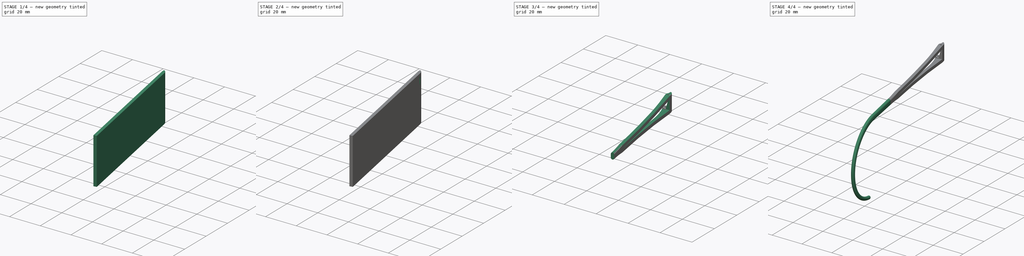
[diagram: build sequence overview — one tinted view per stage of 4, left to right]
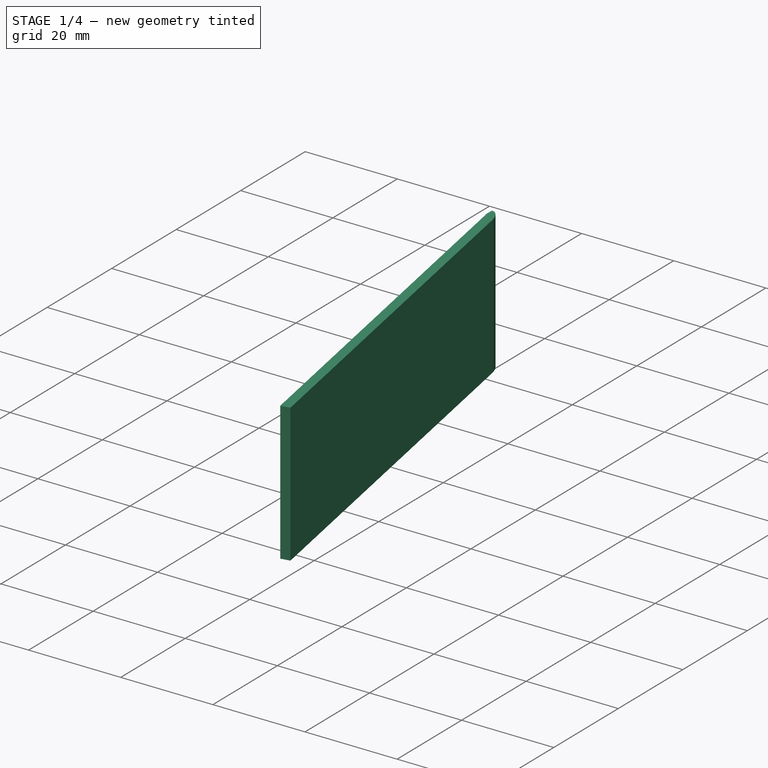
[diagram: stage 1 of 4 — iso view after this stage's code; geometry added in this stage tinted green]
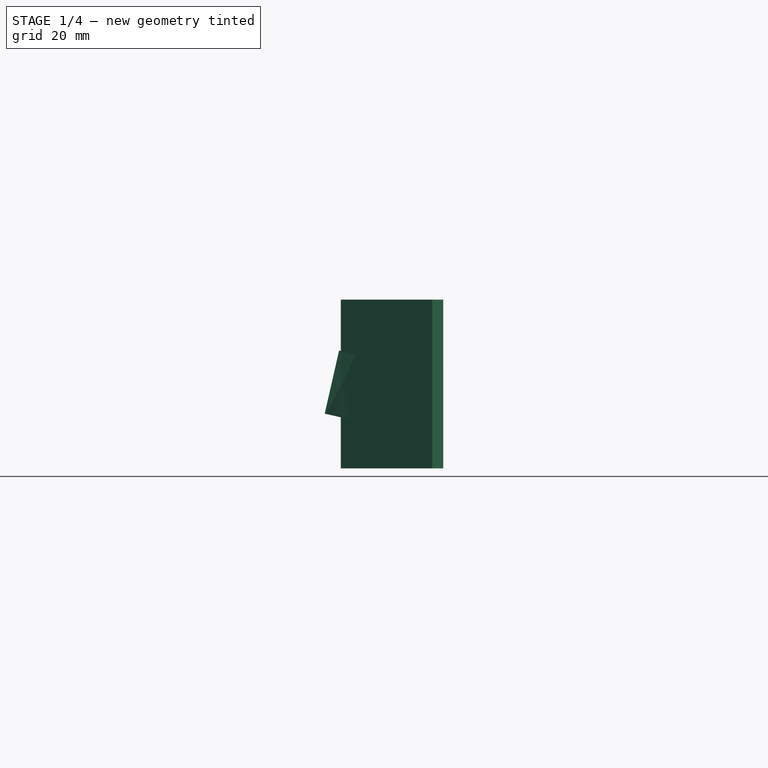
[diagram: stage 1 of 4 — front view after this stage's code; geometry added in this stage tinted green]
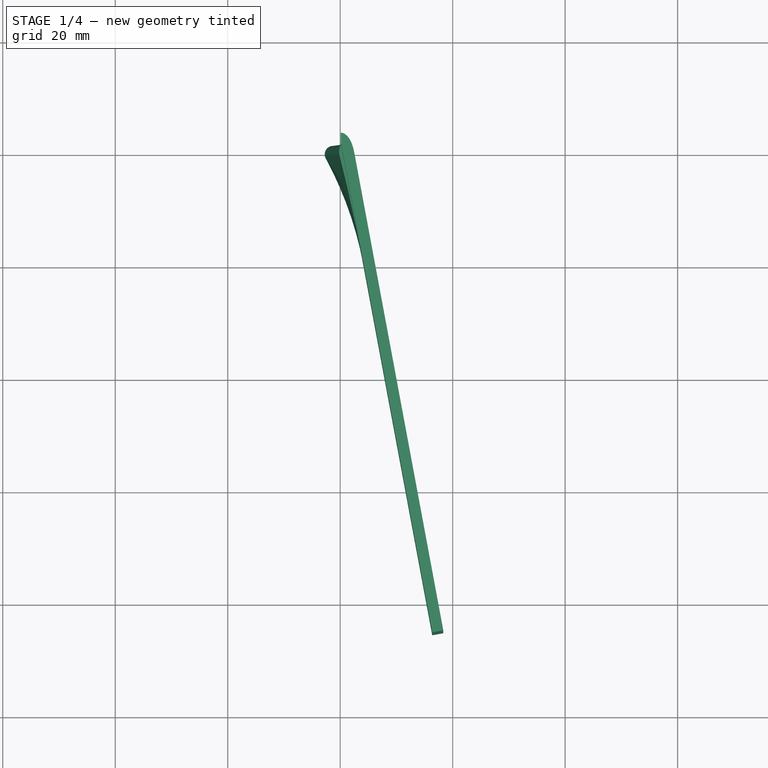
[diagram: stage 1 of 4 — top view after this stage's code; geometry added in this stage tinted green]
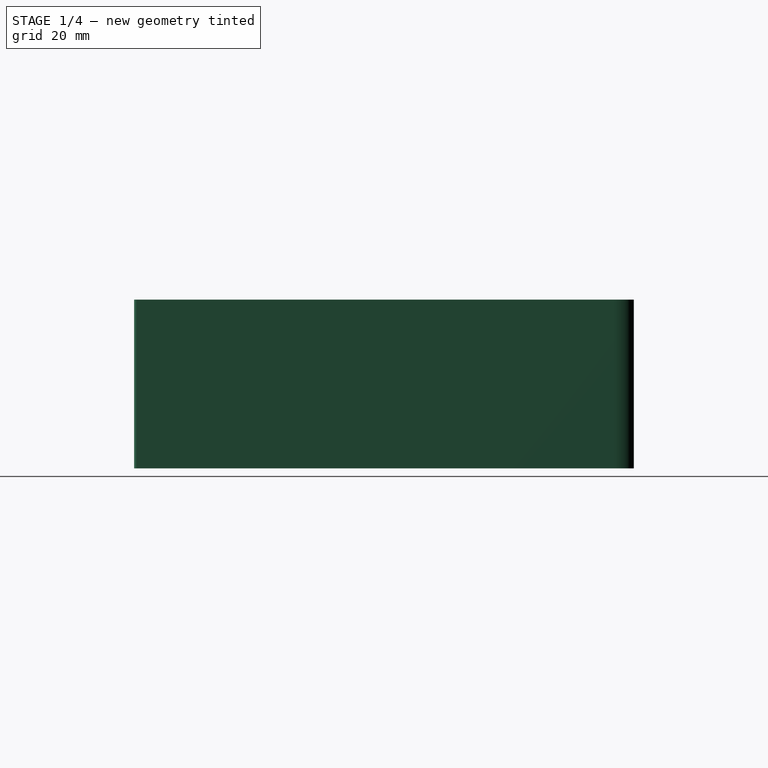
[diagram: stage 1 of 4 — right view after this stage's code; geometry added in this stage tinted green]
FCSTD DOCUMENT  (FreeCAD 1.1R39679 (Git))
Label: right_temple
License: All rights reserved
LicenseURL: http://en.wikipedia.org/wiki/All_rights_reserved
objects: Sketcher::SketchObject×14, PartDesign::Plane×7, PartDesign::Line×3, PartDesign::Pocket×3, PartDesign::AdditiveLoft×2, App::Point×2, PartDesign::Pad×1, PartDesign::SubtractiveLoft×1, PartDesign::AdditivePipe×1, PartDesign::Fillet×1, PartDesign::Body×1, App::Part×1
note: 66 computed .brp shape members not serialized (recipe doc carries the construction recipe); baked Part::Feature solids carry a one-line shape summary decoded from their .brp

FEATURE [Sketcher::SketchObject] Sketch001  label="Hinge mid profile master sketch"
  ArcFitTolerance = 1e-06
  AttachmentSupport = -> [XY_Plane001]
  ExternalTypes = [0]
  FullyConstrained = true
  MakeInternals = false
  MapMode = 5
  sketch-geometry (19):
    g0: ArcOfCircle CenterX=3e-16 CenterY=5.10698e-11 CenterZ=0 NormalX=0 NormalY=0 NormalZ=1 AngleXU=0 Radius=1.5 StartAngle=1.5708 EndAngle=3.52097
    g1: Circle CenterX=3e-16 CenterY=5.10698e-11 CenterZ=0 NormalX=0 NormalY=0 NormalZ=1 AngleXU=0 Radius=1.5
    g2: LineSegment StartX=18.3344 StartY=-85 StartZ=0 EndX=2.5 EndY=5.10738e-11 EndZ=0
    g3: ArcOfCircle CenterX=-95.7553 CenterY=-38.1767 CenterZ=0 NormalX=0 NormalY=0 NormalZ=1 AngleXU=0 Radius=101.585 StartAngle=0.184176 EndAngle=0.379377
    g4: LineSegment StartX=4.11175 StartY=-19.5728 StartZ=0 EndX=16.3682 EndY=-85.3663 EndZ=0
    g5: LineSegment StartX=16.3682 StartY=-85.3663 StartZ=0 EndX=18.3344 EndY=-85 EndZ=0
    g6: LineSegment StartX=3e-16 StartY=1.5 StartZ=0 EndX=0.1 EndY=1.5 EndZ=0
    g7: LineSegment StartX=0.1 StartY=1.5 StartZ=0 EndX=0.1 EndY=3.5 EndZ=0
    g8: ArcOfEllipse CenterX=0.1 CenterY=-2.08213 CenterZ=0 NormalX=0 NormalY=0 NormalZ=1 MajorRadius=5.58213 MinorRadius=2.58668 AngleXU=1.5708 StartAngle=5.09463 EndAngle=6.28318
    g9: LineSegment [constr] StartX=0.1 StartY=3.5 StartZ=0 EndX=-1.9 EndY=3.5 EndZ=0
    g10: GeomPoint [constr] X=0.0999963 Y=3.5 Z=0
    g11: Circle CenterX=3e-16 CenterY=5.10698e-11 CenterZ=0 NormalX=0 NormalY=0 NormalZ=1 AngleXU=0 Radius=0.55
    g12: LineSegment StartX=4.11175 StartY=-19.5728 StartZ=0 EndX=0.186162 EndY=1.5 EndZ=0
    g13: LineSegment StartX=0.1 StartY=1.5 StartZ=0 EndX=0.186162 EndY=1.5 EndZ=0
    g14: LineSegment [constr] StartX=-112.4 StartY=0 StartZ=0 EndX=-128.7 EndY=-85 EndZ=0
    g15: LineSegment [constr] StartX=16.3682 StartY=-85.3663 StartZ=0 EndX=16.3 EndY=-85 EndZ=0
    g16: LineSegment [constr] StartX=-128.7 StartY=-85 StartZ=0 EndX=-112.4 EndY=-85 EndZ=0
    g17: LineSegment [constr] StartX=-112.4 StartY=-85 StartZ=0 EndX=0 EndY=-85 EndZ=0
    g18: LineSegment [constr] StartX=0 StartY=-85 StartZ=0 EndX=16.3 EndY=-85 EndZ=0
  constraints (55):
    c: Equal(g1,g0)
    c: Diameter(g1) = 3
    c: Horizontal(g2,g0)
    c: Distance(g2,g1) = 1
    c: PointOnObject(g0,g-2)
    c: Coincident(g1,g0)
    c: Vertical(g0,g0)
    c: PointOnObject(g0,g-1)
    c: Tangent(g3,g0) = 1.5708
    c: Distance(g2,g4) = 2
    c: Tangent(g4,g3) = 1.5708
    c: Coincident(g5,g4)
    c: Coincident(g5,g2)
    c: Coincident(g6,g0)
    c: Coincident(g7,g6)
    c: Horizontal(g6)
    c: Vertical(g7)
    c: Distance(g7,g-2) = 0.1
    c: DistanceY(g7,g7) = 2
    c: Coincident(g8,g7)
    c: PointOnObject(g8,g7)
    c: Coincident(g9,g7)
    c: Horizontal(g9)
    c: Equal(g7,g9)
    c: Tangent(g8,g2) = -1.5708
    c: PointOnObject(g10,g8)
    c: PointOnObject(g10,g9)
    c: Tangent(g8,g9,g10) = -1.5708
    c: Coincident(g11,g0)
    c: Diameter(g11) = 1.1
    c: Coincident(g12,g3)
    c: Coincident(g13,g6)
    c: Coincident(g13,g12)
    c: Horizontal(g13)
    c: Parallel(g4,g2)
    c: Parallel(g12,g4)
    c: PointOnObject(g14,g-1)
    c: DistanceX(g14,g0) = 112.4
    c: Perpendicular(g4,g5)
    c: Coincident(g15,g4)
    c: Parallel(g15,g4)
    c: Coincident(g14,g16)
    c: PointOnObject(g17,g-2)
    c: Coincident(g17,g18)
    c: Coincident(g18,g15)
    c: Parallel(g17,g18)
    c: Equal(g16,g18)
    c: Coincident(g17,g16)
    c: Vertical(g14,g16)
    c: Parallel(g16,g17)
    c: Horizontal(g17)
    c: Distance(g17,g-1) = 85
    c: DistanceX(g14,g15) = 145
    c: Distance(g0,g3) = 20
    c: PointOnObject(g2,g18)
FEATURE [PartDesign::Pad] Pad  label="Hinge outer, outsized"
  Direction = (0,0,1)
  Length = 30
  Length2 = 10
  Midplane = true
  Profile = -> Sketch001 [Edge9,Edge8,Edge7,Edge6,Edge10,Edge4,Edge5]
  ReferenceAxis = -> Sketch001 [N_Axis]
  Refine = true
  Suppressed = false
  Type = 0
FEATURE [Sketcher::SketchObject] Sketch  label="Hinge axis, outsized"
  ArcFitTolerance = 1e-06
  AttachmentSupport = -> [XZ_Plane]
  ExternalTypes = [0]
  FullyConstrained = true
  MakeInternals = false
  MapMode = 5
  Placement = pos=(0,0,0) rot=(1,0,0;1.5708rad)
  sketch-geometry (2):
    g0: LineSegment StartX=-1.29347 StartY=-5.60263 StartZ=0 EndX=1.29347 EndY=5.60263 EndZ=0
    g1: LineSegment StartX=-0.562378 StartY=-2.43593 StartZ=0 EndX=0.562378 EndY=2.43593 EndZ=0
  constraints (6):
    c: Symmetric(g0,g0,g-1)
    c: Distance(g0,g0) = 11.5
    c: Angle(g0,g-2) = 0.226893
    c: PointOnObject(g1,g0)
    c: Symmetric(g1,g1,g-1)
    c: Distance(g1,g1) = 5
FEATURE [PartDesign::Plane] DatumPlane001  label="Hinge inner top profile plane"
  AttachmentSupport = -> [Sketch]
  Length = 160.885
  MapMode = 7
  Placement = pos=(1.29347,1.2e-15,5.60263) rot=(0.704823,-0.704823,-0.080304;2.98133rad)
  ResizeMode = 0
  Width = 84.0412
FEATURE [PartDesign::Plane] DatumPlane002  label="Hinge inner bottom profile plane"
  AttachmentSupport = -> [Sketch]
  Length = 160.885
  MapMode = 7
  Placement = pos=(-1.29347,-1.2e-15,-5.60263) rot=(0.704823,-0.704823,-0.080304;2.98133rad)
  ResizeMode = 0
  Width = 84.0412
FEATURE [PartDesign::Line] DatumLine  label="Edge of hinge outer on hinge inner top profile plane"
  AttacherType = Attacher::AttachEngineLine
  AttachmentSupport = -> [DatumPlane001,Pad]
  Length = 20
  MapMode = 30
  Placement = pos=(0.494787,-0.156714,5.78702) rot=(-0.063777,0.690602,0.720418;3.27446rad)
  ResizeMode = 0
FEATURE [PartDesign::Line] DatumLine001  label="Edge of hinge outer lip on hinge inner top profile plane"
  AttacherType = Attacher::AttachEngineLine
  AttachmentSupport = -> [DatumPlane001,Pad]
  Length = 20
  MapMode = 30
  Placement = pos=(0.1,1.2e-15,5.87816) rot=(0,0.707107,0.707107;3.14159rad)
  ResizeMode = 0
FEATURE [PartDesign::Line] DatumLine002  label="Edge of hinge outer on hinge inner bottom profile plane"
  AttacherType = Attacher::AttachEngineLine
  AttachmentSupport = -> [DatumPlane002,Pad]
  Length = 20
  MapMode = 30
  Placement = pos=(0.403562,0.332985,-5.99442) rot=(-0.063777,0.690602,0.720418;3.27446rad)
  ResizeMode = 0
FEATURE [Sketcher::SketchObject] Sketch008
  ArcFitTolerance = 1e-06
  AttachmentSupport = -> [DatumPlane001]
  ExternalGeometry = -> [Sketch001,DatumLine,Pad,DatumLine001]
  ExternalTypes = [0]
  FullyConstrained = true
  MakeInternals = false
  MapMode = 5
  Placement = pos=(1.29347,1.2e-15,5.60263) rot=(0.704823,-0.704823,-0.080304;2.98133rad)
  sketch-geometry (6):
    g0: LineSegment StartX=-1.5 StartY=1.22486 StartZ=0 EndX=-1.5 EndY=1.13643 EndZ=0
    g1: LineSegment StartX=-1.5 StartY=1.13643 StartZ=0 EndX=19.5728 EndY=-2.89241 EndZ=0
    g2: LineSegment [constr] StartX=0 StartY=0 StartZ=0 EndX=1.5 EndY=0 EndZ=0
    g3: Circle [constr] CenterX=0 CenterY=0 CenterZ=0 NormalX=0 NormalY=0 NormalZ=1 AngleXU=0 Radius=1.5
    g4: ArcOfCircle CenterX=-0.273426 CenterY=-1.04374 CenterZ=0 NormalX=0 NormalY=0 NormalZ=1 AngleXU=0 Radius=2.57896 StartAngle=1.31459 EndAngle=2.06645
    g5: ArcOfCircle CenterX=74.488 CenterY=284.34 CenterZ=0 NormalX=0 NormalY=0 NormalZ=1 AngleXU=0 Radius=292.435 StartAngle=4.45618 EndAngle=4.52348
  constraints (16):
    c: PointOnObject(g0,g-6)
    c: PointOnObject(g1,g-5)
    c: Vertical(g-4,g1)
    c: PointOnObject(g0,g-5)
    c: PointOnObject(g0,g-6)
    c: Coincident(g1,g0)
    c: Coincident(g4,g0)
    c: PointOnObject(g0,g-7)
    c: Coincident(g2,g-1)
    c: PointOnObject(g2,g-3)
    c: Horizontal(g2)
    c: Coincident(g3,g2)
    c: PointOnObject(g2,g3)
    c: Tangent(g1,g5) = -1.5708
    c: Tangent(g4,g5) = 1.5708
    c: Tangent(g4,g3) = -1.5708
FEATURE [Sketcher::SketchObject] Sketch009
  ArcFitTolerance = 1e-06
  AttachmentSupport = -> [DatumPlane002]
  ExternalGeometry = -> [DatumLine002,Sketch001,Sketch008]
  ExternalTypes = [0]
  FullyConstrained = true
  MakeInternals = false
  MapMode = 5
  Placement = pos=(-1.29347,-1.2e-15,-5.60263) rot=(0.704823,-0.704823,-0.080304;2.98133rad)
  sketch-geometry (6):
    g0: LineSegment StartX=-1.5 StartY=-1.51855 StartZ=0 EndX=19.5728 EndY=-5.5474 EndZ=0
    g1: LineSegment StartX=-1.5 StartY=-2.99788e-11 StartZ=0 EndX=-1.5 EndY=-1.51855 EndZ=0
    g2: Circle [constr] CenterX=0 CenterY=0 CenterZ=0 NormalX=0 NormalY=0 NormalZ=1 AngleXU=0 Radius=1.5
    g3: LineSegment [constr] StartX=0 StartY=0 StartZ=0 EndX=1.5 EndY=0 EndZ=0
    g4: ArcOfCircle CenterX=-1.67359e-11 CenterY=-2.99788e-11 CenterZ=0 NormalX=0 NormalY=0 NormalZ=1 AngleXU=0 Radius=1.5 StartAngle=1.06163 EndAngle=3.14159
    g5: ArcOfCircle CenterX=31.3801 CenterY=56.2106 CenterZ=0 NormalX=0 NormalY=0 NormalZ=1 AngleXU=0 Radius=62.8766 StartAngle=4.20323 EndAngle=4.52348
  constraints (15):
    c: PointOnObject(g0,g-3)
    c: PointOnObject(g5,g-3)
    c: Vertical(g5,g-4)
    c: Tangent(g4,g-6) = -1.5708
    c: Coincident(g0,g1)
    c: Coincident(g1,g4)
    c: Vertical(g1)
    c: Coincident(g2,g-1)
    c: Coincident(g3,g2)
    c: PointOnObject(g3,g-5)
    c: Horizontal(g3)
    c: PointOnObject(g3,g2)
    c: Tangent(g0,g5) = -1.5708
    c: Tangent(g4,g5) = 1.5708
    c: Tangent(g4,g2) = -1.5708
FEATURE [PartDesign::AdditiveLoft] AdditiveLoft001  label="Hinger inner"
  BaseFeature = -> Pad
  Closed = false
  Profile = -> Sketch008
  Refine = true
  Ruled = false
  Sections = -> [Sketch009]
  Suppressed = false
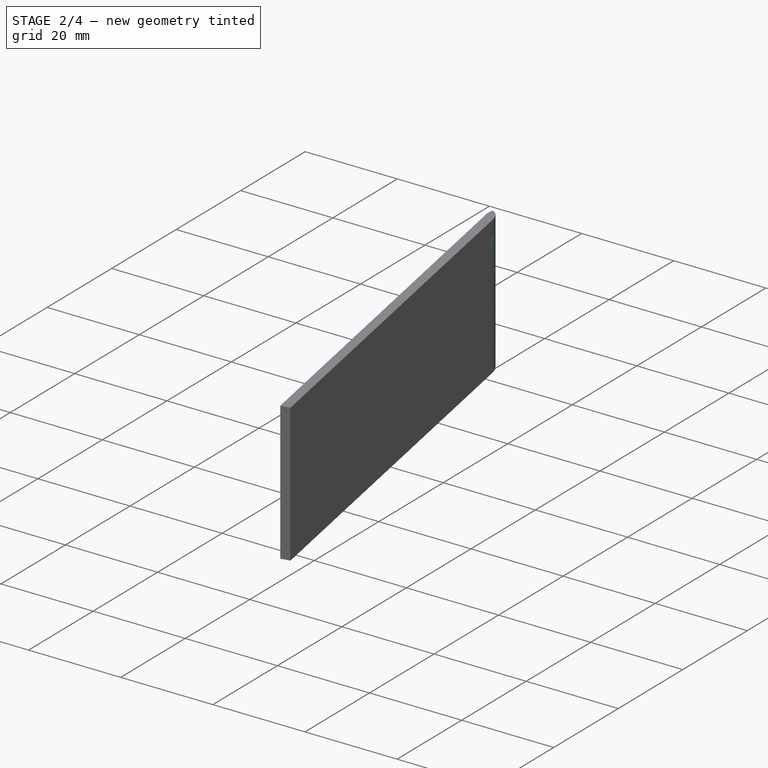
[diagram: stage 2 of 4 — iso view after this stage's code; geometry added in this stage tinted green]
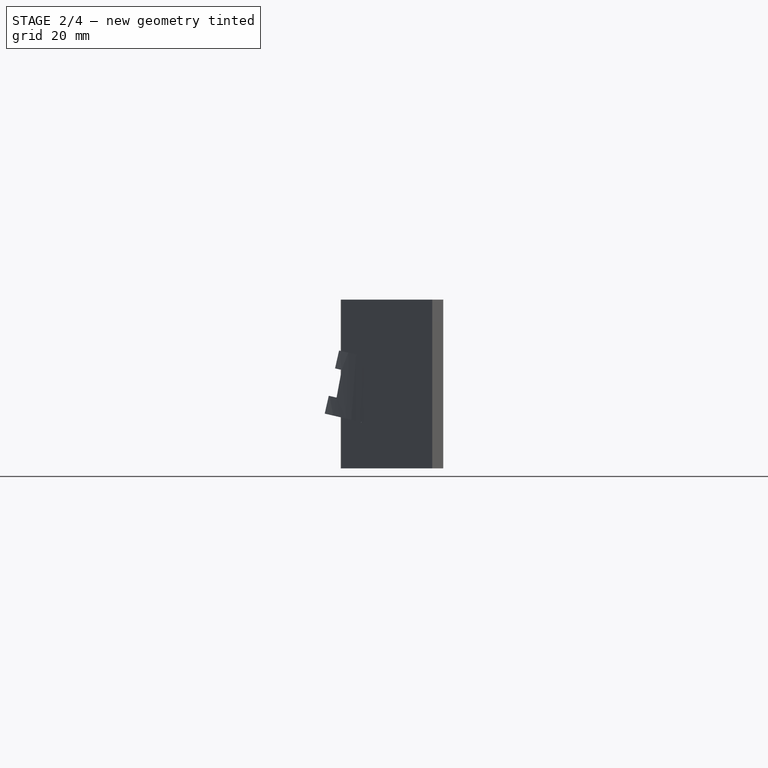
[diagram: stage 2 of 4 — front view after this stage's code; geometry added in this stage tinted green]
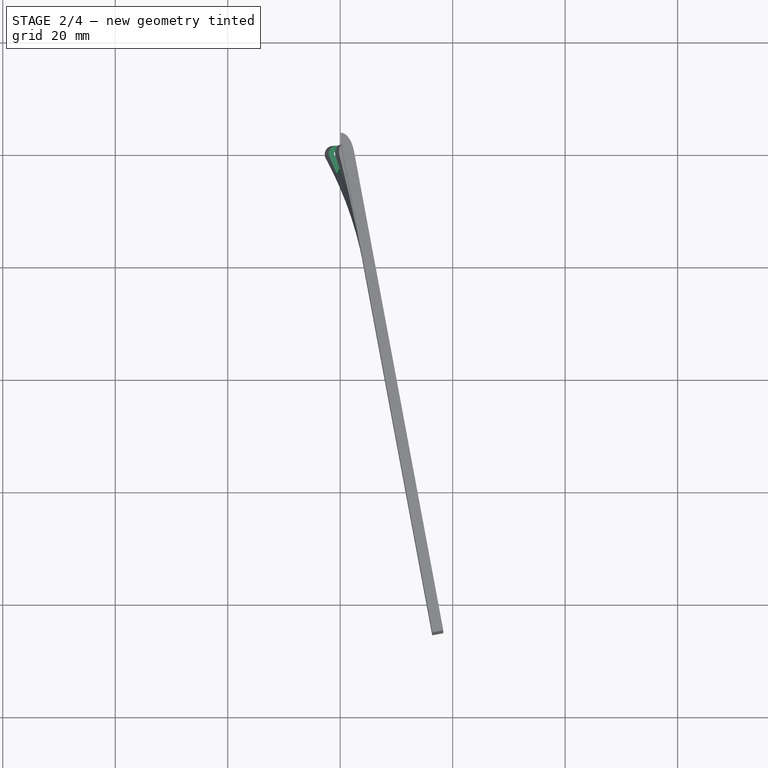
[diagram: stage 2 of 4 — top view after this stage's code; geometry added in this stage tinted green]
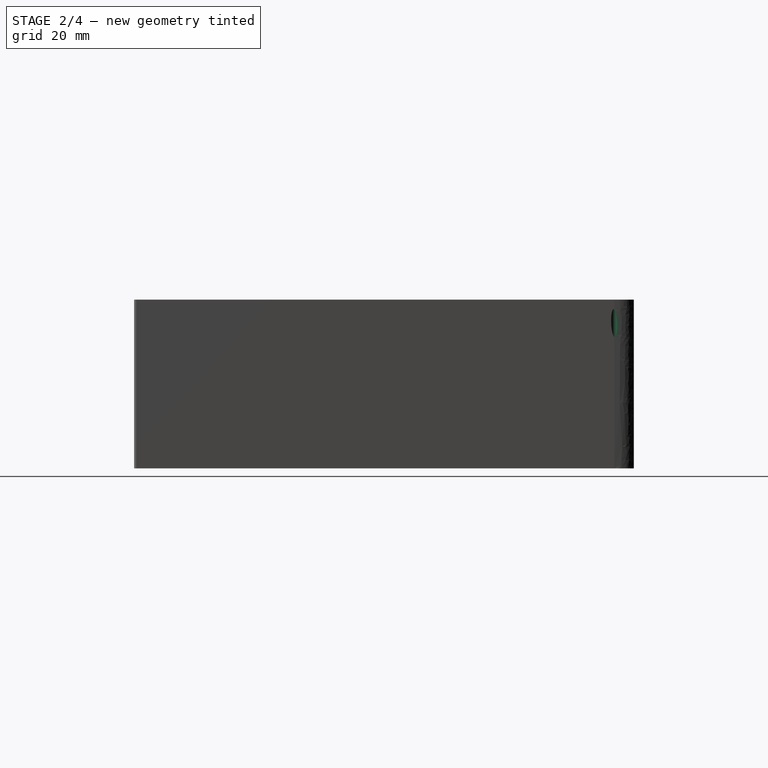
[diagram: stage 2 of 4 — right view after this stage's code; geometry added in this stage tinted green]
FEATURE [Sketcher::SketchObject] Sketch010
  ArcFitTolerance = 1e-06
  AttachmentSupport = -> [DatumPlane001]
  ExternalGeometry = -> [Sketch001]
  ExternalTypes = [0]
  FullyConstrained = true
  MakeInternals = false
  MapMode = 5
  Placement = pos=(1.29347,1.2e-15,5.60263) rot=(0.704823,-0.704823,-0.080304;2.98133rad)
  sketch-geometry (2):
    g0: LineSegment [constr] StartX=0 StartY=0 StartZ=0 EndX=0.55 EndY=0 EndZ=0
    g1: Circle CenterX=0 CenterY=0 CenterZ=0 NormalX=0 NormalY=0 NormalZ=1 AngleXU=0 Radius=0.55
  constraints (5):
    c: Coincident(g0,g-1)
    c: PointOnObject(g0,g-3)
    c: Horizontal(g0)
    c: Coincident(g1,g0)
    c: PointOnObject(g0,g1)
FEATURE [PartDesign::Pocket] Pocket  label="Hinge pin hole"
  BaseFeature = -> AdditiveLoft001
  Direction = (0.224951,0,0.97437)
  Length = 5
  Length2 = 5
  Midplane = true
  Profile = -> Sketch010
  ReferenceAxis = -> Sketch010 [N_Axis]
  Suppressed = false
  Type = 1
FEATURE [PartDesign::Plane] DatumPlane003  label="Hinge inner middle top profile plane"
  AttachmentSupport = -> [Sketch]
  Length = 160.885
  MapMode = 7
  Placement = pos=(0.562378,5e-16,2.43593) rot=(0.704823,-0.704823,-0.080304;2.98133rad)
  ResizeMode = 0
  Width = 84.0412
FEATURE [PartDesign::Plane] DatumPlane004  label="Hinge inner middle bottom profile plane"
  AttachmentSupport = -> [Sketch]
  Length = 160.885
  MapMode = 7
  Placement = pos=(-0.562378,-5e-16,-2.43593) rot=(0.704823,-0.704823,-0.080304;2.98133rad)
  ResizeMode = 0
  Width = 84.0412
FEATURE [Sketcher::SketchObject] Sketch011
  ArcFitTolerance = 1e-06
  AttachmentSupport = -> [DatumPlane003]
  ExternalGeometry = -> [Sketch001]
  ExternalTypes = [0]
  FullyConstrained = true
  MakeInternals = false
  MapMode = 5
  Placement = pos=(0.562378,5e-16,2.43593) rot=(0.704823,-0.704823,-0.080304;2.98133rad)
  sketch-geometry (8):
    g0: ArcOfCircle CenterX=0 CenterY=0 CenterZ=0 NormalX=0 NormalY=0 NormalZ=1 AngleXU=0 Radius=1.65 StartAngle=3.14159 EndAngle=5.23096
    g1: LineSegment [constr] StartX=1.5 StartY=0 StartZ=0 EndX=0 EndY=0 EndZ=0
    g2: LineSegment StartX=-1.65 StartY=2.5 StartZ=0 EndX=7.70983 EndY=2.5 EndZ=0
    g3: LineSegment StartX=-1.65 StartY=0 StartZ=0 EndX=-1.65 EndY=2.5 EndZ=0
    g4: LineSegment [constr] StartX=0.743463 StartY=-1.30279 StartZ=0 EndX=0.81781 EndY=-1.43307 EndZ=0
    g5: Circle [constr] CenterX=0 CenterY=0 CenterZ=0 NormalX=0 NormalY=0 NormalZ=1 AngleXU=0 Radius=1.5
    g6: LineSegment StartX=0.81781 StartY=-1.43307 StartZ=0 EndX=7.70983 EndY=2.5 EndZ=0
    g7: LineSegment [constr] StartX=0 StartY=1.5 StartZ=0 EndX=0 EndY=2.5 EndZ=0
  constraints (23):
    c: Coincident(g0,g-1)
    c: Coincident(g1,g0)
    c: Horizontal(g2)
    c: Coincident(g3,g2)
    c: Vertical(g3)
    c: PointOnObject(g1,g-3)
    c: PointOnObject(g1,g-1)
    c: PointOnObject(g0,g-1)
    c: Coincident(g3,g0)
    c: Coincident(g4,g0)
    c: Coincident(g5,g0)
    c: PointOnObject(g1,g5)
    c: PointOnObject(g4,g5)
    c: Coincident(g6,g2)
    c: Tangent(g6,g0) = -1.5708
    c: Distance(g4,g0) = 0.15
    c: PointOnObject(g7,g5)
    c: PointOnObject(g7,g2)
    c: PointOnObject(g0,g7)
    c: Vertical(g7)
    c: DistanceY(g7,g7) = 1
    c: PointOnObject(g0,g4)
    c: Angle(g-4,g6) = 0.698132
FEATURE [Sketcher::SketchObject] Sketch012
  ArcFitTolerance = 1e-06
  AttachmentSupport = -> [DatumPlane004]
  ExternalGeometry = -> [Sketch011]
  ExternalTypes = [0]
  FullyConstrained = true
  MakeInternals = false
  MapMode = 5
  Placement = pos=(-0.562378,-5e-16,-2.43593) rot=(0.704823,-0.704823,-0.080304;2.98133rad)
  sketch-geometry (4):
    g0: ArcOfCircle CenterX=0 CenterY=0 CenterZ=0 NormalX=0 NormalY=0 NormalZ=1 AngleXU=0 Radius=1.65 StartAngle=3.14159 EndAngle=5.23097
    g1: LineSegment StartX=-1.65 StartY=0 StartZ=0 EndX=-1.65 EndY=2.5 EndZ=0
    g2: LineSegment StartX=-1.65 StartY=2.5 StartZ=0 EndX=7.70983 EndY=2.5 EndZ=0
    g3: LineSegment StartX=7.70983 StartY=2.5 StartZ=0 EndX=0.817826 EndY=-1.43306 EndZ=0
  constraints (9):
    c: Coincident(g0,g-1)
    c: Coincident(g0,g-3)
    c: Coincident(g1,g-3)
    c: Coincident(g1,g-3)
    c: Coincident(g2,g1)
    c: Coincident(g2,g-4)
    c: Coincident(g3,g-4)
    c: Coincident(g3,g0)
    c: PointOnObject(g0,g-4)
FEATURE [PartDesign::SubtractiveLoft] SubtractiveLoft  label="Slot for frame hinge"
  BaseFeature = -> Pocket
  Closed = false
  Profile = -> Sketch011
  Ruled = false
  Sections = -> [Sketch012]
  Suppressed = false
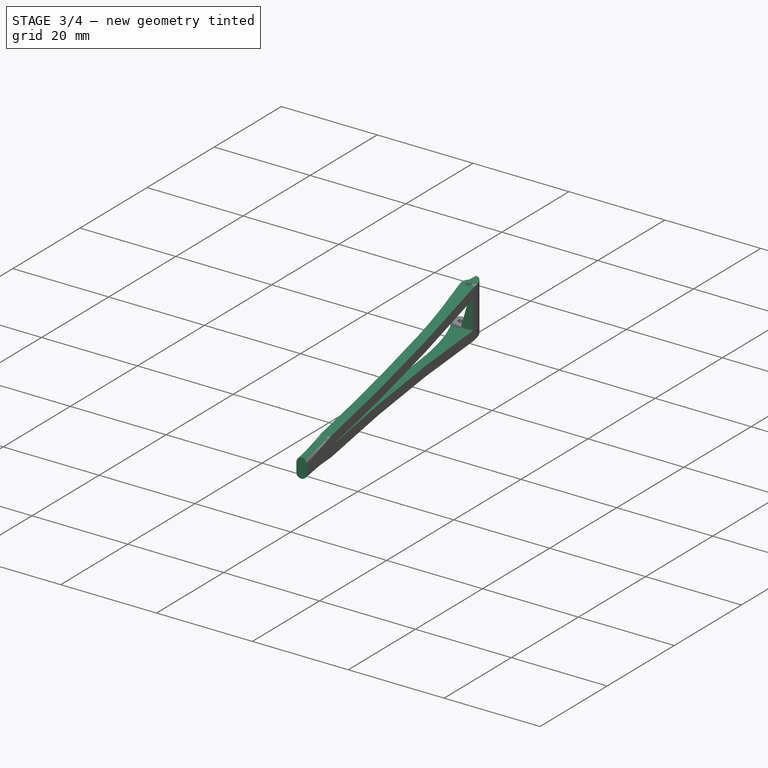
[diagram: stage 3 of 4 — iso view after this stage's code; geometry added in this stage tinted green]
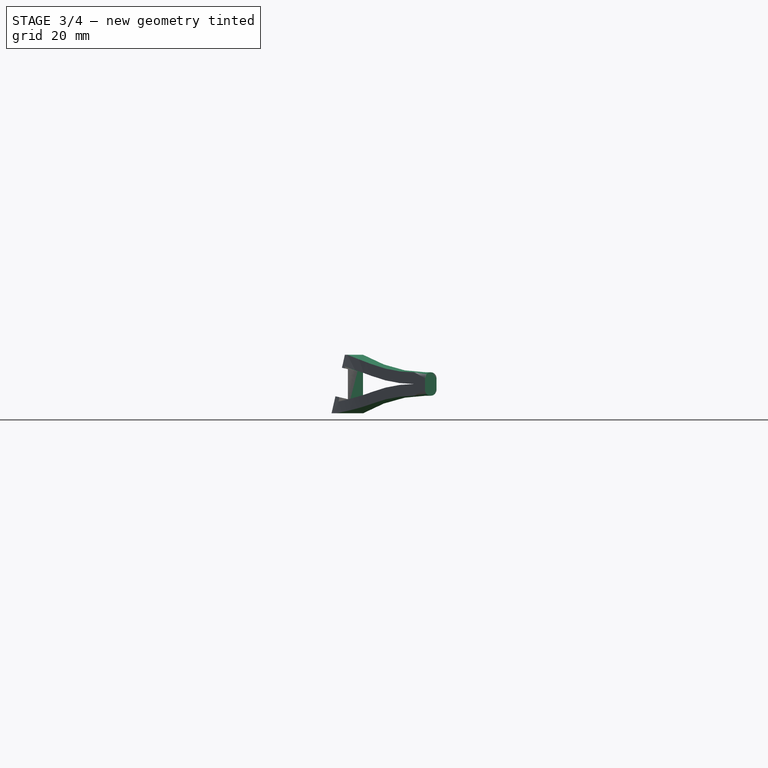
[diagram: stage 3 of 4 — front view after this stage's code; geometry added in this stage tinted green]
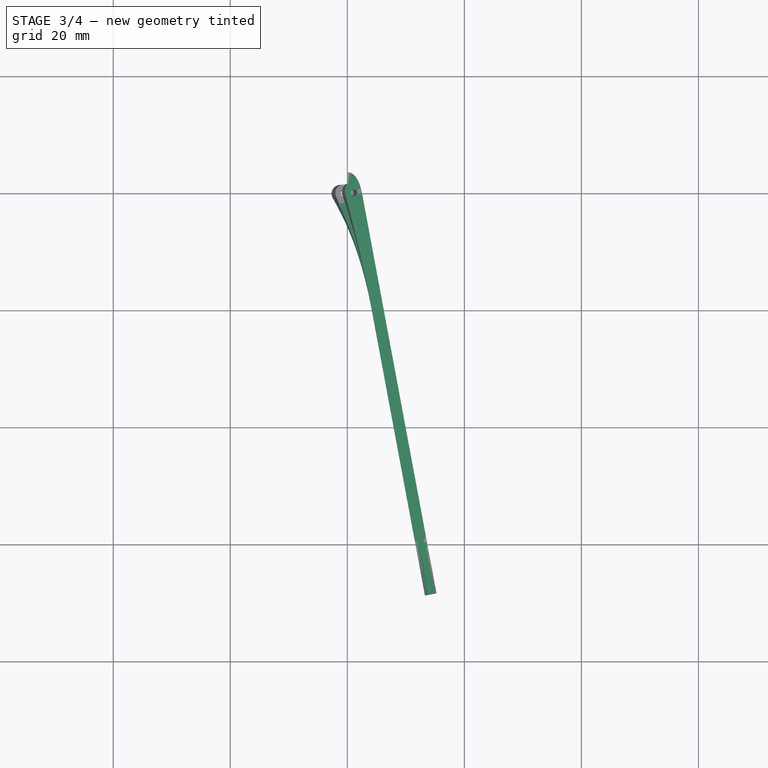
[diagram: stage 3 of 4 — top view after this stage's code; geometry added in this stage tinted green]
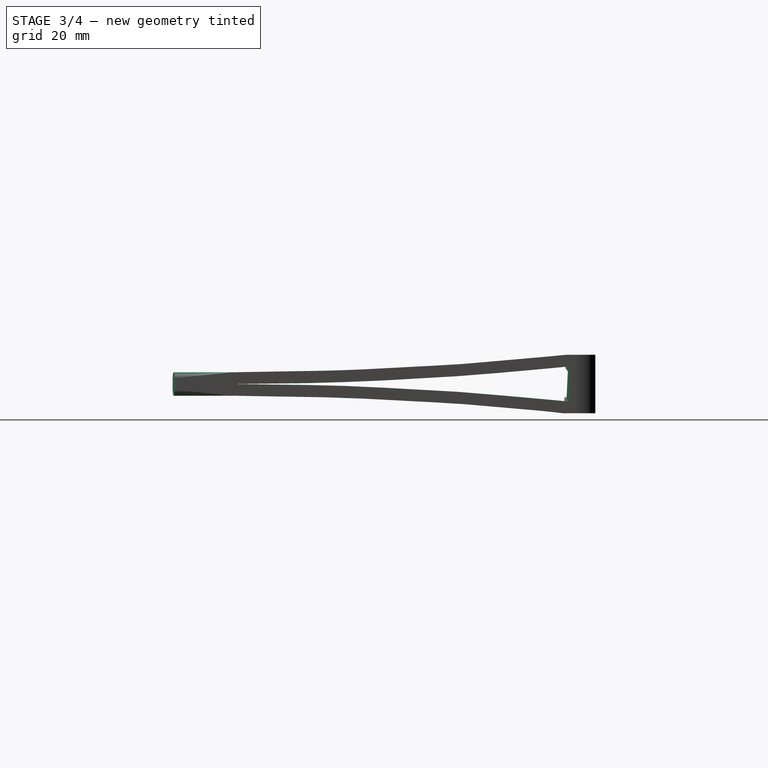
[diagram: stage 3 of 4 — right view after this stage's code; geometry added in this stage tinted green]
FEATURE [Sketcher::SketchObject] Sketch013  label="Ear hook wire master sketch"
  ArcFitTolerance = 1e-06
  AttachmentSupport = -> [SubtractiveLoft]
  ExternalTypes = [0]
  FullyConstrained = true
  MakeInternals = false
  MapMode = 5
  Placement = pos=(0.449978,0.083825,0) rot=(0.648089,-0.538508,-0.538508;1.99153rad)
  sketch-geometry (10):
    g0: LineSegment StartX=0 StartY=0 StartZ=0 EndX=60 EndY=0.000652174 EndZ=0
    g1: LineSegment StartX=60 StartY=0.000652174 StartZ=0 EndX=70 EndY=0.00076087 EndZ=0
    g2: LineSegment [constr] StartX=95.7998 StartY=-46.4455 StartZ=0 EndX=91.0994 EndY=-23.4871 EndZ=0
    g3: LineSegment StartX=70 StartY=0.00076087 StartZ=0 EndX=92 EndY=0.001 EndZ=0
    g4: LineSegment StartX=95.7998 StartY=-46.4455 StartZ=0 EndX=95.7016 EndY=-46.4642 EndZ=0
    g5: ArcOfEllipse CenterX=91.0994 CenterY=-23.4871 CenterZ=0 NormalX=0 NormalY=0 NormalZ=1 MajorRadius=26.5 MinorRadius=23.4247 AngleXU=0.139637 StartAngle=4.76748 EndAngle=7.69631
    g6: LineSegment [constr] StartX=117.341 StartY=-19.7987 StartZ=0 EndX=64.8573 EndY=-27.1755 EndZ=0
    g7: GeomPoint [constr] X=103.37 Y=-21.7625 Z=0
    g8: GeomPoint [constr] X=78.8291 Y=-25.2117 Z=0
    g9: LineSegment [constr] StartX=117.543 StartY=-22.6869 StartZ=0 EndX=117.543 EndY=-46.4642 EndZ=0
  constraints (27):
    c: Coincident(g-1,g0)
    c: Distance(g0,g0) = 60
    c: Coincident(g1,g0)
    c: Parallel(g0,g1)
    c: Distance(g1,g1) = 10
    c: Coincident(g2,g5)
    c: Parallel(g1,g3)
    c: Distance(g3,g-1) = 0.001
    c: Tangent(g4,g5) = 1.5708
    c: Distance(g4,g4) = 0.1
    c: InternalAlignment(g6,g5)
    c: InternalAlignment(g7,g5)
    c: InternalAlignment(g8,g5)
    c: Coincident(g1,g3)
    c: Coincident(g5,g2)
    c: Distance(g3,g3) = 22
    c: Distance(g2,g6) = 26.5
    c: Distance(g6,g3) = 19.8
    c: Tangent(g3,g5) = 1.5708
    c: Angle(g2,g3) = 1.36886
    c: Angle(g3,g6) = 0.139626
    c: Tangent(g9,g5) = 1.5708
    c: Vertical(g9)
    c: Horizontal(g4,g9)
    c: Distance(g9,g-2) = 117.543
    c: Distance(g2,g-2) = 95.7998
    c: Distance(g2,g-1) = 46.4455
FEATURE [Sketcher::SketchObject] Sketch003
  ArcFitTolerance = 1e-06
  AttachmentSupport = -> [SubtractiveLoft]
  ExternalGeometry = -> [Sketch001,Sketch013,SubtractiveLoft]
  ExternalTypes = [0]
  FullyConstrained = true
  MakeInternals = false
  MapMode = 5
  Placement = pos=(0.449978,0.083825,0) rot=(0.506579,0.609663,0.609663;2.2038rad)
  sketch-geometry (10):
    g0: ArcOfCircle CenterX=-59.9938 CenterY=573.878 CenterZ=0 NormalX=0 NormalY=0 NormalZ=1 AngleXU=0 Radius=571.877 StartAngle=4.71238 EndAngle=4.81485
    g1: LineSegment StartX=-86.9201 StartY=15 StartZ=0 EndX=-86.9201 EndY=-15 EndZ=0
    g2: ArcOfCircle CenterX=-60.0062 CenterY=-573.872 CenterZ=0 NormalX=0 NormalY=0 NormalZ=1 AngleXU=0 Radius=571.873 StartAngle=1.46831 EndAngle=1.57079
    g3: LineSegment StartX=-60 StartY=2.00065 StartZ=0 EndX=-60 EndY=-1.99935 EndZ=0
    g4: LineSegment StartX=-86.9201 StartY=-15 StartZ=0 EndX=3.42249 EndY=-15 EndZ=0
    g5: LineSegment StartX=-1.5 StartY=5 StartZ=0 EndX=3.42249 EndY=5 EndZ=0
    g6: LineSegment StartX=3.42249 StartY=5 StartZ=0 EndX=3.42249 EndY=15 EndZ=0
    g7: LineSegment StartX=-1.5 StartY=-5 StartZ=0 EndX=3.42249 EndY=-5 EndZ=0
    g8: LineSegment StartX=3.42249 StartY=-15 StartZ=0 EndX=3.42249 EndY=-5 EndZ=0
    g9: LineSegment StartX=-86.9201 StartY=15 StartZ=0 EndX=3.42249 EndY=15 EndZ=0
  constraints (28):
    c: Coincident(g4,g1)
    c: Symmetric(g0,g2,g-4)
    c: Symmetric(g9,g4,g-4)
    c: Vertical(g0,g-3)
    c: Coincident(g5,g0)
    c: Coincident(g6,g5)
    c: Coincident(g6,g9)
    c: Horizontal(g5)
    c: Coincident(g7,g2)
    c: Horizontal(g7)
    c: Coincident(g8,g4)
    c: Coincident(g8,g7)
    c: Distance(g5,g7) = 10
    c: PointOnObject(g0,g3)
    c: PointOnObject(g2,g3)
    c: Coincident(g0,g3)
    c: Distance(g3,g3) = 4
    c: Coincident(g3,g2)
    c: Symmetric(g0,g2,g-5)
    c: PointOnObject(g-5,g3)
    c: Vertical(g1)
    c: Horizontal(g4)
    c: Coincident(g1,g9)
    c: Coincident(g1,g-6)
    c: PointOnObject(g-6,g9)
    c: Vertical(g6)
    c: Vertical(g8)
    c: PointOnObject(g-7,g6)
FEATURE [PartDesign::Pocket] Pocket001  label="Temple #1"
  BaseFeature = -> SubtractiveLoft
  Direction = (-0.983087,-0.183137,1e-16)
  Length = 5
  Length2 = 5
  Midplane = true
  Profile = -> Sketch003
  ReferenceAxis = -> Sketch003 [N_Axis]
  Refine = true
  Suppressed = false
  Type = 1
FEATURE [Sketcher::SketchObject] Sketch005
  ArcFitTolerance = 1e-06
  AttachmentSupport = -> [Pocket001]
  ExternalGeometry = -> [Sketch003]
  ExternalTypes = [0]
  FullyConstrained = true
  MakeInternals = false
  MapMode = 5
  Placement = pos=(0.449978,0.083825,0) rot=(0.506579,0.609663,0.609663;2.2038rad)
  sketch-geometry (10):
    g0: LineSegment [constr] StartX=-1.5 StartY=5 StartZ=0 EndX=0 EndY=5.15396 EndZ=0
    g1: LineSegment [constr] StartX=-1.5 StartY=2.98949 StartZ=0 EndX=0 EndY=3.14345 EndZ=0
    g2: LineSegment [constr] StartX=-1.5 StartY=-5 StartZ=0 EndX=0 EndY=-5.15399 EndZ=0
    g3: LineSegment [constr] StartX=-1.5 StartY=-2.98949 StartZ=0 EndX=0 EndY=-3.14348 EndZ=0
    g4: ArcOfCircle CenterX=-59.8938 CenterY=571.922 CenterZ=0 NormalX=0 NormalY=0 NormalZ=1 AngleXU=0 Radius=571.922 StartAngle=4.71238 EndAngle=4.81467
    g5: LineSegment [constr] StartX=-60 StartY=2.00065 StartZ=0 EndX=-60 EndY=0.000652174 EndZ=0
    g6: LineSegment [constr] StartX=-60 StartY=-1.99935 StartZ=0 EndX=-60 EndY=0.000652174 EndZ=0
    g7: LineSegment [constr] StartX=-60 StartY=0.000652174 StartZ=0 EndX=-59.9 EndY=0.000651087 EndZ=0
    g8: ArcOfCircle CenterX=-59.9062 CenterY=-571.917 CenterZ=0 NormalX=0 NormalY=0 NormalZ=1 AngleXU=0 Radius=571.917 StartAngle=1.46849 EndAngle=1.57079
    g9: LineSegment StartX=-1.5 StartY=2.98949 StartZ=0 EndX=-1.5 EndY=-2.98949 EndZ=0
  constraints (27):
    c: PointOnObject(g0,g-2)
    c: PointOnObject(g1,g-2)
    c: Parallel(g1,g0)
    c: Distance(g0,g1) = 2
    c: PointOnObject(g2,g-2)
    c: PointOnObject(g3,g-2)
    c: Parallel(g2,g3)
    c: Distance(g3,g2) = 2
    c: Coincident(g-3,g0)
    c: Coincident(g-4,g2)
    c: Coincident(g5,g-3)
    c: Coincident(g6,g-4)
    c: Coincident(g6,g5)
    c: Coincident(g7,g5)
    c: Parallel(g6,g5)
    c: Distance(g7,g7) = 0.1
    c: Equal(g5,g6)
    c: Perpendicular(g5,g7)
    c: Tangent(g7,g4) = -1.5708
    c: Coincident(g4,g8)
    c: Tangent(g8,g7)
    c: Tangent(g4,g1) = -1.5708
    c: Tangent(g8,g3) = 1.5708
    c: Vertical(g1,g0)
    c: Vertical(g3,g2)
    c: Coincident(g9,g1)
    c: Coincident(g9,g3)
FEATURE [PartDesign::Pocket] Pocket002  label="Temple #2"
  BaseFeature = -> Pocket001
  Direction = (-0.983087,-0.183137,1e-16)
  Length = 5
  Length2 = 5
  Midplane = true
  Profile = -> Sketch005
  ReferenceAxis = -> Sketch005 [N_Axis]
  Refine = true
  Suppressed = false
  Type = 1
FEATURE [PartDesign::Plane] DatumPlane  label="Ear hook wire root plane"
  AttachmentOffset = pos=(0,0,10) rot=(0,0,1;0rad)
  AttachmentSupport = -> [Pocket002,Sketch013]
  Length = 86.4693
  MapMode = 6
  Placement = pos=(13.2695,-68.7323,0.00076087) rot=(0.60966,-0.506577,0.609667;2.20379rad)
  ResizeMode = 0
  Width = 89.7919
FEATURE [Sketcher::SketchObject] Sketch006  label="Ear hook wire root profile"
  ArcFitTolerance = 1e-06
  AttachmentSupport = -> [DatumPlane]
  ExternalGeometry = -> [Pocket002]
  ExternalTypes = [0]
  FullyConstrained = true
  MakeInternals = false
  MapMode = 5
  Placement = pos=(13.2695,-68.7323,0.00076087) rot=(0.60966,-0.506577,0.609667;2.20379rad)
  sketch-geometry (4):
    g0: LineSegment StartX=-1 StartY=-2 StartZ=0 EndX=1 EndY=-2 EndZ=0
    g1: ArcOfCircle CenterX=-1 CenterY=-1 CenterZ=0 NormalX=0 NormalY=0 NormalZ=1 AngleXU=0 Radius=1 StartAngle=1.5708 EndAngle=4.71239
    g2: ArcOfCircle CenterX=1 CenterY=-1 CenterZ=0 NormalX=0 NormalY=0 NormalZ=1 AngleXU=0 Radius=1 StartAngle=4.71239 EndAngle=7.85398
    g3: LineSegment StartX=-1 StartY=2.14e-14 StartZ=0 EndX=1 EndY=2.14e-14 EndZ=0
  constraints (13):
    c: PointOnObject(g0,g-3)
    c: Symmetric(g0,g0,g-2)
    c: Coincident(g1,g0)
    c: Vertical(g1,g0)
    c: Vertical(g1,g1)
    c: Coincident(g2,g0)
    c: Vertical(g0,g2)
    c: Horizontal(g1,g2)
    c: Vertical(g2,g2)
    c: Coincident(g3,g1)
    c: Coincident(g3,g2)
    c: Distance(g3,g0) = 2
    c: Tangent(g1,g-4)
FEATURE [PartDesign::AdditiveLoft] AdditiveLoft  label="Temple-to-ear-hook transition"
  BaseFeature = -> Pocket002
  Closed = false
  Profile = -> Pocket002 [Face3]
  Refine = true
  Ruled = false
  Sections = -> [Sketch006]
  Suppressed = false
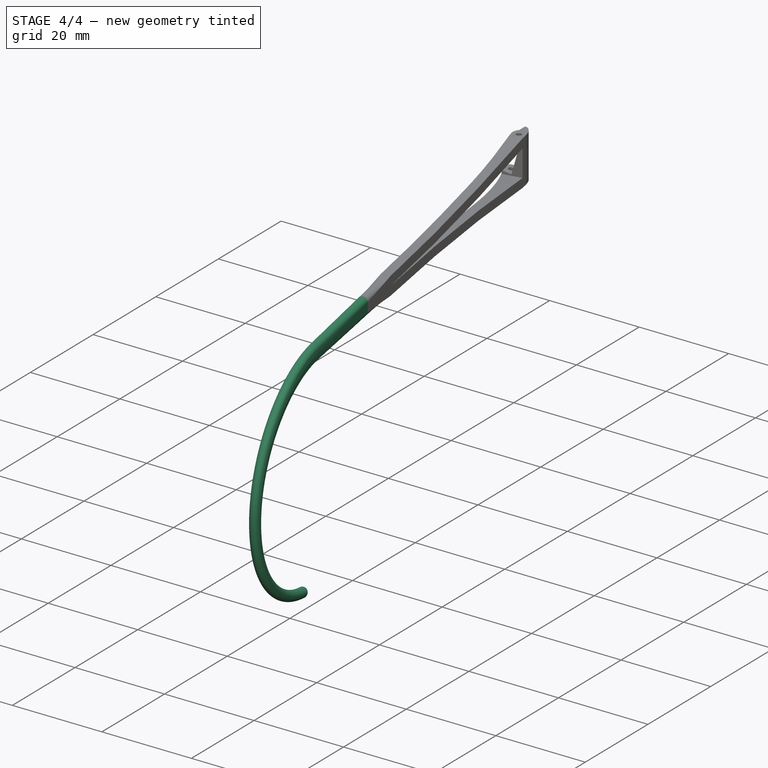
[diagram: stage 4 of 4 — iso view after this stage's code; geometry added in this stage tinted green]
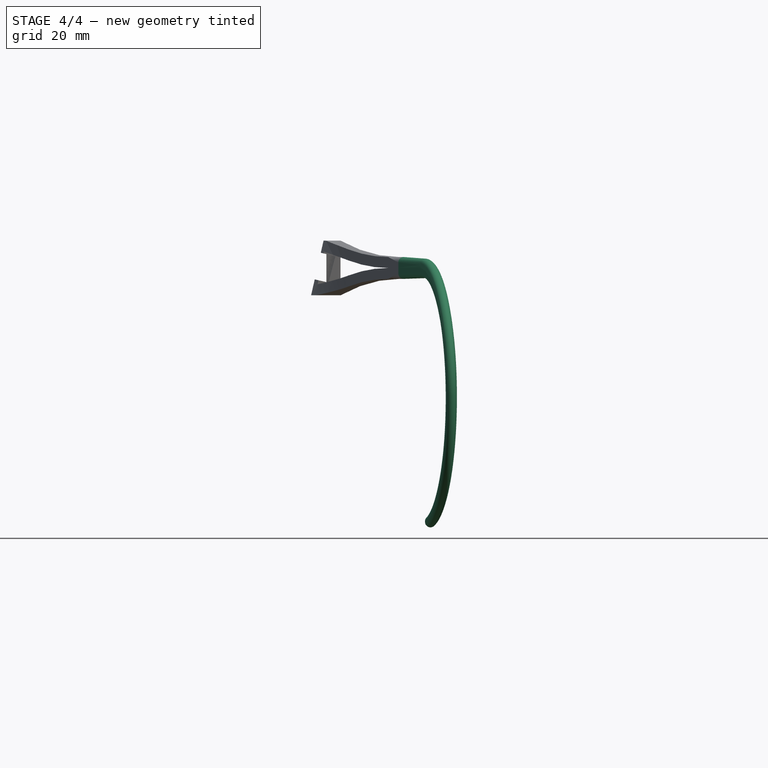
[diagram: stage 4 of 4 — front view after this stage's code; geometry added in this stage tinted green]
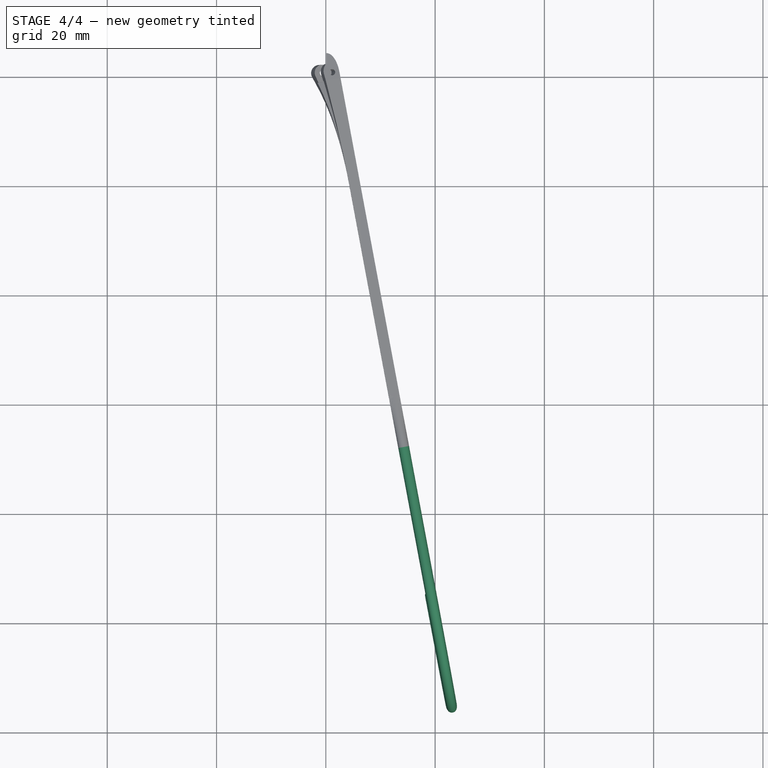
[diagram: stage 4 of 4 — top view after this stage's code; geometry added in this stage tinted green]
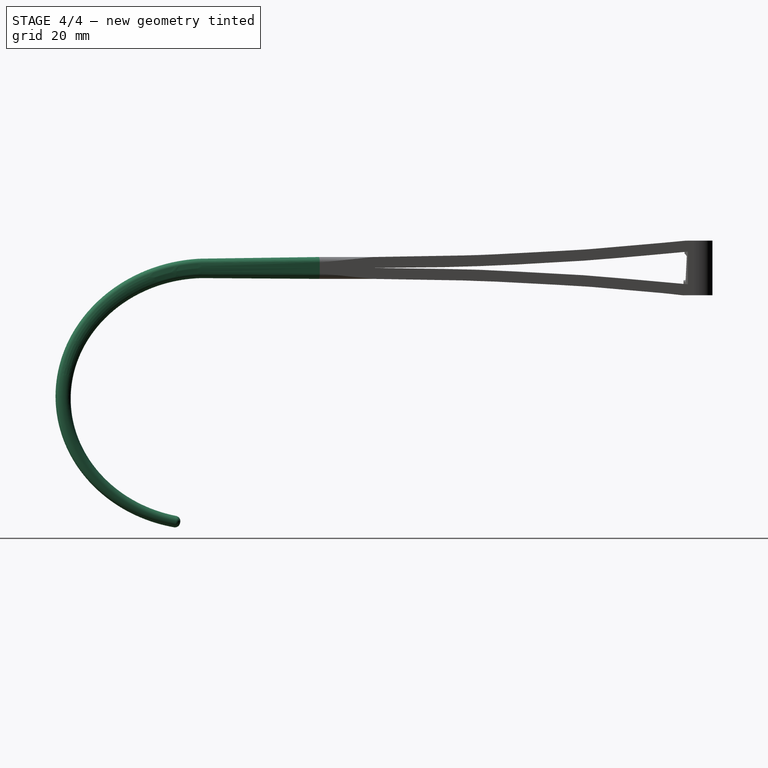
[diagram: stage 4 of 4 — right view after this stage's code; geometry added in this stage tinted green]
FEATURE [Sketcher::SketchObject] Sketch014  label="Ear hook wire center"
  ArcFitTolerance = 1e-06
  AttachmentSupport = -> [DatumPlane]
  ExternalGeometry = -> [Sketch006]
  ExternalTypes = [0]
  FullyConstrained = true
  MakeInternals = false
  MapMode = 5
  Placement = pos=(13.2695,-68.7323,0.00076087) rot=(0.60966,-0.506577,0.609667;2.20379rad)
  sketch-geometry (2):
    g0: LineSegment StartX=-1 StartY=2.49e-14 StartZ=0 EndX=-2e-16 EndY=-1 EndZ=0
    g1: LineSegment StartX=-2e-16 StartY=-1 StartZ=0 EndX=1 EndY=-2 EndZ=0
  constraints (5):
    c: Coincident(g0,g-4)
    c: Coincident(g1,g0)
    c: Coincident(g1,g-3)
    c: Equal(g0,g1)
    c: Parallel(g0,g1)
FEATURE [PartDesign::Plane] DatumPlane006  label="Ear hook wire center plane"
  AttachmentSupport = -> [Sketch014,AdditiveLoft]
  Length = 169.117
  MapMode = 6
  Placement = pos=(14.2526,-68.5492,0.00076087) rot=(0.648089,-0.538508,-0.538508;1.99153rad)
  ResizeMode = 0
  Width = 92.4295
FEATURE [Sketcher::SketchObject] Sketch015  label="Ear hook wire path"
  ArcFitTolerance = 1e-06
  AttachmentSupport = -> [DatumPlane006]
  ExternalGeometry = -> [Sketch013]
  ExternalTypes = [0]
  FullyConstrained = true
  MakeInternals = false
  MapMode = 5
  Placement = pos=(14.2526,-68.5492,0.00076087) rot=(0.648089,-0.538508,-0.538508;1.99153rad)
  sketch-geometry (7):
    g0: ArcOfEllipse CenterX=21.0994 CenterY=-23.4879 CenterZ=0 NormalX=0 NormalY=0 NormalZ=1 MajorRadius=26.5 MinorRadius=23.4247 AngleXU=-0.0383248 StartAngle=4.92567 EndAngle=7.85398
    g1: LineSegment [constr] StartX=47.5799 StartY=-24.5032 StartZ=0 EndX=-5.38116 EndY=-22.4725 EndZ=0
    g2: LineSegment [constr] StartX=21.9969 StartY=-0.0803619 StartZ=0 EndX=20.2019 EndY=-46.8954 EndZ=0
    g3: GeomPoint [constr] X=33.4811 Y=-23.9626 Z=0
    g4: GeomPoint [constr] X=8.71761 Y=-23.0131 Z=0
    g5: LineSegment [constr] StartX=21.0994 StartY=-23.4879 StartZ=0 EndX=25.7998 EndY=-46.4463 EndZ=0
    g6: LineSegment StartX=21.9969 StartY=-0.0803619 StartZ=0 EndX=0 EndY=0 EndZ=0
  constraints (10):
    c: InternalAlignment(g1-g4 -> g0) x4
    c: Coincident(g0,g-4)
    c: Equal(g-4,g0)
    c: PointOnObject(g-3,g2)
    c: Coincident(g5,g0)
    c: Coincident(g5,g-5)
    c: PointOnObject(g0,g5)
    c: PointOnObject(g0,g2)
    c: Coincident(g6,g0)
    c: Coincident(g6,g-1)
FEATURE [PartDesign::Plane] DatumPlane007  label="Ear hook wire end plane"
  AttachmentSupport = -> [Sketch015]
  Length = 91.8465
  MapMode = 7
  Placement = pos=(18.9825,-93.9395,-46.5792) rot=(-0.069864,0.756518,0.65023;3.26154rad)
  ResizeMode = 0
  Width = 110.016
FEATURE [Sketcher::SketchObject] Sketch016  label="Ear hook wire end profile"
  ArcFitTolerance = 1e-06
  AttachmentSupport = -> [DatumPlane007]
  ExternalTypes = [0]
  FullyConstrained = true
  MakeInternals = false
  MapMode = 5
  Placement = pos=(18.9825,-93.9395,-46.5792) rot=(-0.069864,0.756518,0.65023;3.26154rad)
  sketch-geometry (4):
    g0: ArcOfCircle CenterX=0 CenterY=0.05 CenterZ=0 NormalX=0 NormalY=0 NormalZ=1 AngleXU=0 Radius=1 StartAngle=0 EndAngle=3.14159
    g1: ArcOfCircle CenterX=0 CenterY=-0.05 CenterZ=0 NormalX=0 NormalY=0 NormalZ=1 AngleXU=0 Radius=1 StartAngle=3.14159 EndAngle=6.28319
    g2: LineSegment StartX=-1 StartY=0.05 StartZ=0 EndX=-1 EndY=-0.05 EndZ=0
    g3: LineSegment StartX=1 StartY=0.05 StartZ=0 EndX=1 EndY=-0.05 EndZ=0
  constraints (13):
    c: Horizontal(g0,g0)
    c: Horizontal(g0,g0)
    c: Horizontal(g1,g1)
    c: Horizontal(g1,g1)
    c: Symmetric(g1,g0,g-1)
    c: Coincident(g2,g0)
    c: Coincident(g2,g1)
    c: Vertical(g2)
    c: Coincident(g0,g3)
    c: Coincident(g1,g3)
    c: Distance(g3,g2) = 2
    c: DistanceY(g2,g2) = 0.1
    c: PointOnObject(g0,g-2)
FEATURE [PartDesign::AdditivePipe] AdditivePipe  label="Ear hook wire"
  AuxilleryCurvelinear = true
  AuxillerySpineTangent = false
  BaseFeature = -> AdditiveLoft
  Binormal = (0,0,0)
  Mode = 0
  Profile = -> Sketch006
  Refine = true
  Sections = -> [Sketch016]
  Spine = -> Sketch015
  SpineTangent = false
  Suppressed = false
  Transformation = 1
  Transition = 0
FEATURE [PartDesign::Fillet] Fillet  label="Ear hook wire end"
  Base = -> AdditivePipe [Edge109]
  BaseFeature = -> AdditivePipe
  Radius = 0.95
  Refine = true
  SupportTransform = false
  Suppressed = false
  UseAllEdges = false
FEATURE [PartDesign::Body] Body
  AllowCompound = false
  Group = -> [Sketch001,Sketch003,Pad,Sketch,DatumPlane001,DatumPlane002,DatumLine,DatumLine001,DatumLine002,Sketch008,Sketch009,AdditiveLoft001,Sketch010,Pocket,DatumPlane003,DatumPlane004,Sketch011,Sketch012,SubtractiveLoft,Sketch013,Pocket001,Sketch005,Pocket002,DatumPlane,Sketch006,AdditiveLoft,Sketch014,DatumPlane006,Sketch015,DatumPlane007,Sketch016,AdditivePipe,Fillet]
  Origin = -> Origin001
  Tip = -> Fillet
FEATURE [App::Part] Part  label="Right temple"
  Group = -> [Body]
  Origin = -> Origin
FEATURE [App::Point] Origin002  label="Origin"
  Role = Origin
FEATURE [App::Point] Origin003  label="Origin"
  Role = Origin
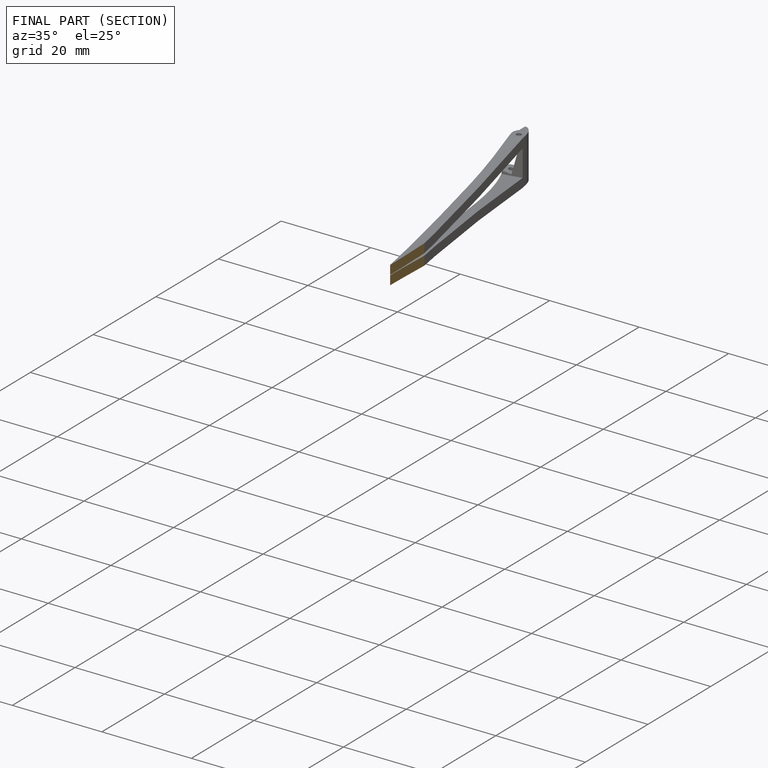
[diagram: finished part — half-section view (interior)]
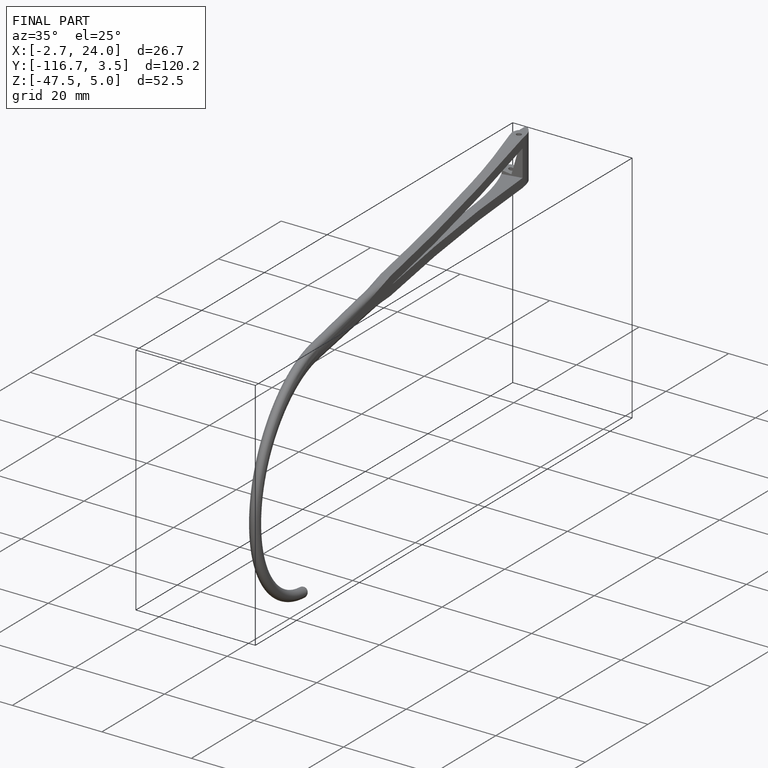
[diagram: finished part — iso view with bounding-box wireframe]
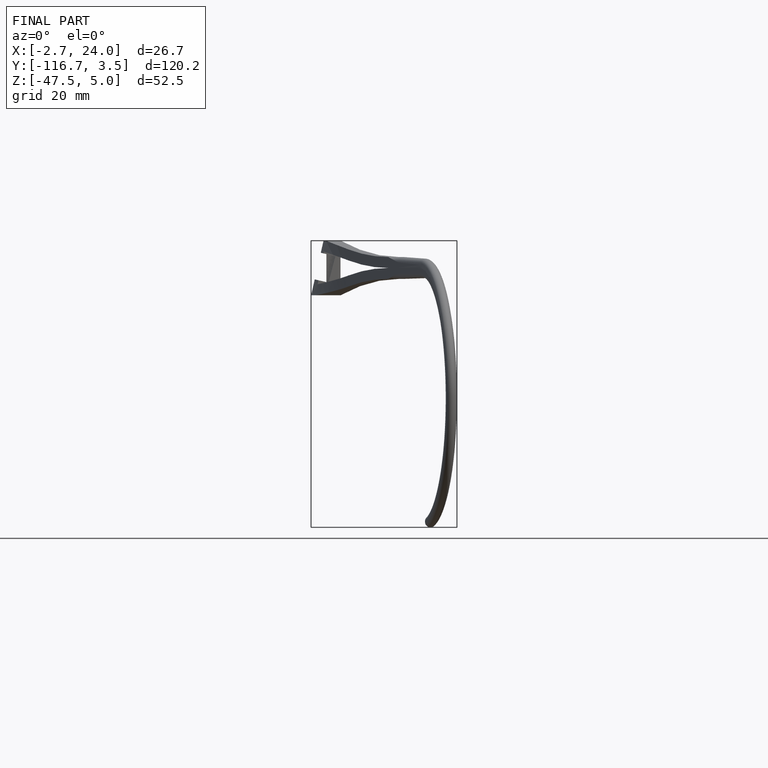
[diagram: finished part — front view with bounding-box wireframe]
